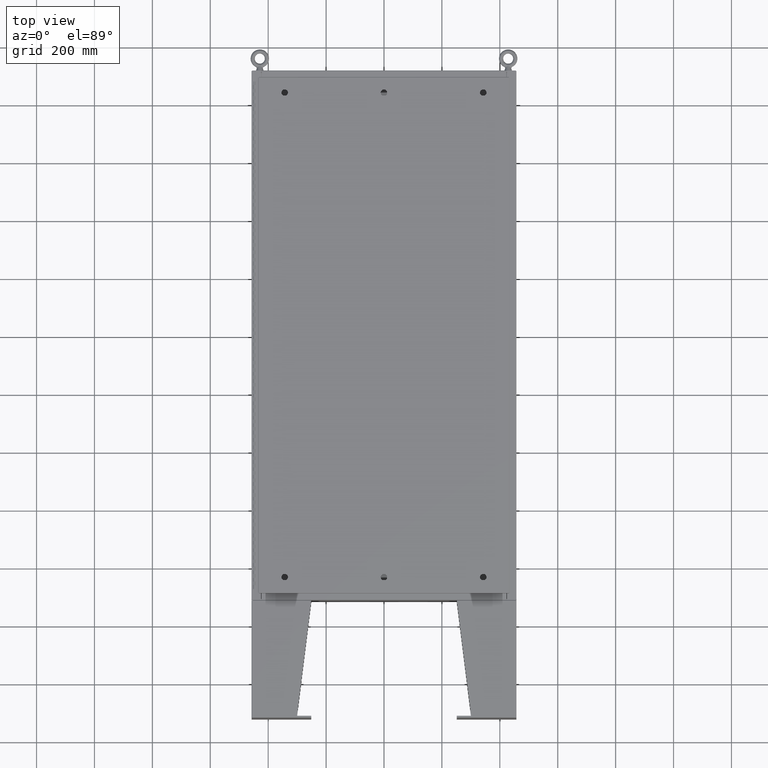
[diagram: clean part render]
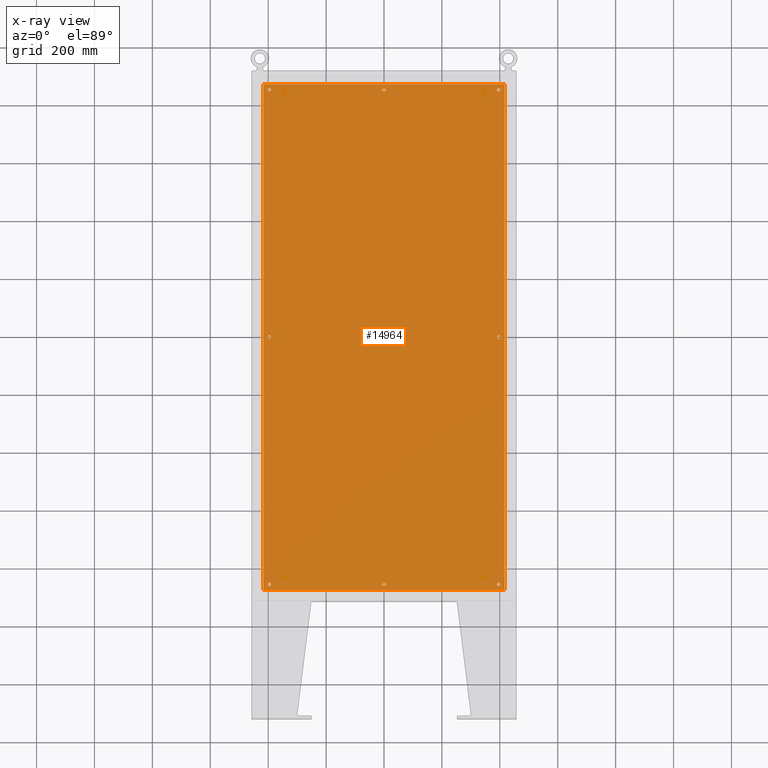
[diagram: x-ray — body ghosted, one internal face saturated and labeled with its STEP entity id]
A machine part, top view, then the same camera in x-ray: the body is ghosted and one INTERNAL B-rep face — a face not visible from any outside direction — is saturated and labeled: STEP entity #14964.
In plain terms, the highlighted planar face has unit normal (0, 0, -1).
Its self-contained STEP definition (entity closure, byte-faithful):
#436 = CIRCLE ( 'NONE', #60839, 0.2500000000000008900 ) ;
#828 = CARTESIAN_POINT ( 'NONE',  ( 15.62500000000000900, -33.62500000000000000, -0.1039999999999999800 ) ) ;
#840 = CARTESIAN_POINT ( 'NONE',  ( 15.37500000000000900, 33.62500000000000000, -0.1039999999999999800 ) ) ;
#859 = ORIENTED_EDGE ( 'NONE', *, *, #42252, .T. ) ;
#1086 = CARTESIAN_POINT ( 'NONE',  ( -15.37500000000000500, -8.298848852119578500E-016, -0.1039999999999999800 ) ) ;
#2755 = VERTEX_POINT ( 'NONE', #70679 ) ;
#2887 = DIRECTION ( 'NONE',  ( -0.0000000000000000000, -0.0000000000000000000, 1.000000000000000000 ) ) ;
#3287 = ORIENTED_EDGE ( 'NONE', *, *, #57635, .F. ) ;
#3484 = EDGE_LOOP ( 'NONE', ( #62811, #40222 ) ) ;
#4362 = DIRECTION ( 'NONE',  ( -0.0000000000000000000, -0.0000000000000000000, 1.000000000000000000 ) ) ;
#5824 = CARTESIAN_POINT ( 'NONE',  ( 16.49999999999999600, 34.38299999999999600, -0.1040000000000009400 ) ) ;
#6119 = VERTEX_POINT ( 'NONE', #40984 ) ;
#6182 = EDGE_CURVE ( 'NONE', #2755, #38094, #36174, .T. ) ;
#6300 = ORIENTED_EDGE ( 'NONE', *, *, #8284, .T. ) ;
#6386 = DIRECTION ( 'NONE',  ( -1.000000000000000000, 0.0000000000000000000, 0.0000000000000000000 ) ) ;
#6483 = FACE_BOUND ( 'NONE', #6679, .T. ) ;
#6590 = EDGE_CURVE ( 'NONE', #22436, #6119, #66834, .T. ) ;
#6679 = EDGE_LOOP ( 'NONE', ( #11524, #35916 ) ) ;
#6924 = CARTESIAN_POINT ( 'NONE',  ( -15.87500000000000700, -33.62500000000000000, -0.1039999999999999800 ) ) ;
#8140 = CARTESIAN_POINT ( 'NONE',  ( 0.0000000000000000000, -33.62500000000000000, -0.1039999999999999800 ) ) ;
#8284 = EDGE_CURVE ( 'NONE', #42154, #24527, #63972, .T. ) ;
#8486 = CARTESIAN_POINT ( 'NONE',  ( -15.62500000000001100, 33.62500000000000000, -0.1039999999999999800 ) ) ;
#8683 = CARTESIAN_POINT ( 'NONE',  ( 0.0000000000000000000, 0.0000000000000000000, -0.1039999999999999800 ) ) ;
#9927 = VERTEX_POINT ( 'NONE', #56062 ) ;
#10317 = DIRECTION ( 'NONE',  ( -0.0000000000000000000, -0.0000000000000000000, 1.000000000000000000 ) ) ;
#10583 = EDGE_LOOP ( 'NONE', ( #66192, #17294 ) ) ;
#10757 = VERTEX_POINT ( 'NONE', #26946 ) ;
#11307 = EDGE_CURVE ( 'NONE', #24527, #42154, #27499, .T. ) ;
#11524 = ORIENTED_EDGE ( 'NONE', *, *, #22285, .T. ) ;
#11844 = AXIS2_PLACEMENT_3D ( 'NONE', #24196, #62332, #29716 ) ;
#12659 = AXIS2_PLACEMENT_3D ( 'NONE', #8683, #41866, #36406 ) ;
#13689 = DIRECTION ( 'NONE',  ( -1.000000000000000000, 0.0000000000000000000, 0.0000000000000000000 ) ) ;
#13736 = EDGE_LOOP ( 'NONE', ( #19243, #47814 ) ) ;
#13830 = DIRECTION ( 'NONE',  ( -0.0000000000000000000, -0.0000000000000000000, 1.000000000000000000 ) ) ;
#14134 = EDGE_LOOP ( 'NONE', ( #27153, #41430, #42616, #3287 ) ) ;
#14382 = DIRECTION ( 'NONE',  ( -1.000000000000000000, 0.0000000000000000000, 0.0000000000000000000 ) ) ;
#14424 = AXIS2_PLACEMENT_3D ( 'NONE', #48854, #13830, #17524 ) ;
#14910 = CARTESIAN_POINT ( 'NONE',  ( -15.62500000000000900, -33.62500000000000000, -0.1039999999999999800 ) ) ;
#14964 = ADVANCED_FACE ( 'NONE', ( #22804, #35599, #6483, #62854, #64576, #21071, #48300, #33929, #19341 ), #63567, .T. ) ;
#16224 = AXIS2_PLACEMENT_3D ( 'NONE', #14910, #59910, #26135 ) ;
#16640 = LINE ( 'NONE', #5824, #43914 ) ;
#17100 = CARTESIAN_POINT ( 'NONE',  ( 15.62500000000000500, 2.997136362123522700E-015, -0.1039999999999999800 ) ) ;
#17205 = DIRECTION ( 'NONE',  ( -1.000000000000000000, 0.0000000000000000000, 0.0000000000000000000 ) ) ;
#17294 = ORIENTED_EDGE ( 'NONE', *, *, #68481, .T. ) ;
#17332 = ORIENTED_EDGE ( 'NONE', *, *, #11307, .T. ) ;
#17524 = DIRECTION ( 'NONE',  ( -1.000000000000000000, 0.0000000000000000000, 0.0000000000000000000 ) ) ;
#17680 = ORIENTED_EDGE ( 'NONE', *, *, #69660, .T. ) ;
#17953 = CIRCLE ( 'NONE', #62887, 0.2499999999999998600 ) ;
#18064 = DIRECTION ( 'NONE',  ( 0.0000000000000000000, 1.000000000000000000, 0.0000000000000000000 ) ) ;
#18602 = VERTEX_POINT ( 'NONE', #24052 ) ;
#19243 = ORIENTED_EDGE ( 'NONE', *, *, #60257, .T. ) ;
#19278 = DIRECTION ( 'NONE',  ( -0.0000000000000000000, -0.0000000000000000000, 1.000000000000000000 ) ) ;
#19341 = FACE_OUTER_BOUND ( 'NONE', #14134, .T. ) ;
#21071 = FACE_BOUND ( 'NONE', #10583, .T. ) ;
#22165 = CARTESIAN_POINT ( 'NONE',  ( -15.62500000000000900, -33.62500000000000000, -0.1039999999999999800 ) ) ;
#22235 = CARTESIAN_POINT ( 'NONE',  ( -0.2499999999999998600, 33.62500000000000000, -0.1039999999999999800 ) ) ;
#22285 = EDGE_CURVE ( 'NONE', #70646, #53462, #68782, .T. ) ;
#22436 = VERTEX_POINT ( 'NONE', #40323 ) ;
#22609 = DIRECTION ( 'NONE',  ( -1.000000000000000000, 0.0000000000000000000, 0.0000000000000000000 ) ) ;
#22804 = FACE_BOUND ( 'NONE', #66093, .T. ) ;
#22868 = EDGE_CURVE ( 'NONE', #41905, #22436, #16640, .T. ) ;
#23808 = CARTESIAN_POINT ( 'NONE',  ( 16.38299999999999600, 34.38300000000000300, -0.1040000000000009100 ) ) ;
#24052 = CARTESIAN_POINT ( 'NONE',  ( 15.87500000000000700, -33.62500000000000000, -0.1039999999999999800 ) ) ;
#24145 = EDGE_LOOP ( 'NONE', ( #859, #61582 ) ) ;
#24196 = CARTESIAN_POINT ( 'NONE',  ( -15.62500000000000500, -8.298848852119578500E-016, -0.1039999999999999800 ) ) ;
#24527 = VERTEX_POINT ( 'NONE', #6924 ) ;
#24595 = DIRECTION ( 'NONE',  ( 0.0000000000000000000, -1.000000000000000000, 0.0000000000000000000 ) ) ;
#26135 = DIRECTION ( 'NONE',  ( -1.000000000000000000, 0.0000000000000000000, 0.0000000000000000000 ) ) ;
#26207 = CARTESIAN_POINT ( 'NONE',  ( 0.2499999999999998600, 33.62500000000000000, -0.1039999999999999800 ) ) ;
#26946 = CARTESIAN_POINT ( 'NONE',  ( -15.87500000000000700, -7.992687152332741600E-016, -0.1039999999999999800 ) ) ;
#27082 = CARTESIAN_POINT ( 'NONE',  ( 0.0000000000000000000, 33.62500000000000000, -0.1039999999999999800 ) ) ;
#27153 = ORIENTED_EDGE ( 'NONE', *, *, #60400, .F. ) ;
#27499 = CIRCLE ( 'NONE', #67299, 0.2499999999999987000 ) ;
#27763 = VERTEX_POINT ( 'NONE', #39054 ) ;
#29139 = DIRECTION ( 'NONE',  ( 1.000000000000000000, -0.0000000000000000000, -0.0000000000000000000 ) ) ;
#29383 = DIRECTION ( 'NONE',  ( -0.0000000000000000000, -0.0000000000000000000, 1.000000000000000000 ) ) ;
#29716 = DIRECTION ( 'NONE',  ( -1.000000000000000000, 0.0000000000000000000, 0.0000000000000000000 ) ) ;
#30029 = EDGE_CURVE ( 'NONE', #49354, #9927, #47210, .T. ) ;
#30883 = CARTESIAN_POINT ( 'NONE',  ( -15.62500000000000500, -8.298848852119578500E-016, -0.1039999999999999800 ) ) ;
#31134 = CIRCLE ( 'NONE', #36311, 0.2500000000000008900 ) ;
#31359 = VERTEX_POINT ( 'NONE', #26207 ) ;
#32343 = AXIS2_PLACEMENT_3D ( 'NONE', #65290, #32663, #70735 ) ;
#32377 = AXIS2_PLACEMENT_3D ( 'NONE', #8140, #46305, #13689 ) ;
#32608 = DIRECTION ( 'NONE',  ( -1.000000000000000000, 0.0000000000000000000, 0.0000000000000000000 ) ) ;
#32663 = DIRECTION ( 'NONE',  ( -0.0000000000000000000, -0.0000000000000000000, 1.000000000000000000 ) ) ;
#33105 = CIRCLE ( 'NONE', #49028, 0.2499999999999987000 ) ;
#33186 = EDGE_CURVE ( 'NONE', #38094, #2755, #50311, .T. ) ;
#33929 = FACE_BOUND ( 'NONE', #3484, .T. ) ;
#34214 = AXIS2_PLACEMENT_3D ( 'NONE', #37167, #4362, #42599 ) ;
#35341 = CIRCLE ( 'NONE', #60954, 0.2499999999999998600 ) ;
#35599 = FACE_BOUND ( 'NONE', #24145, .T. ) ;
#35602 = LINE ( 'NONE', #39799, #50028 ) ;
#35707 = CARTESIAN_POINT ( 'NONE',  ( -0.2500000000000011700, -33.62500000000000000, -0.1039999999999999800 ) ) ;
#35710 = CARTESIAN_POINT ( 'NONE',  ( 15.62500000000000900, 33.62500000000000000, -0.1039999999999999800 ) ) ;
#35916 = ORIENTED_EDGE ( 'NONE', *, *, #57489, .T. ) ;
#36174 = CIRCLE ( 'NONE', #50342, 0.2500000000000008900 ) ;
#36311 = AXIS2_PLACEMENT_3D ( 'NONE', #30883, #49801, #17205 ) ;
#36406 = DIRECTION ( 'NONE',  ( -1.000000000000000000, 0.0000000000000000000, -0.0000000000000000000 ) ) ;
#36693 = CARTESIAN_POINT ( 'NONE',  ( 15.37500000000000900, -33.62500000000000000, -0.1039999999999999800 ) ) ;
#37167 = CARTESIAN_POINT ( 'NONE',  ( -15.62500000000001100, 33.62500000000000000, -0.1039999999999999800 ) ) ;
#37830 = VECTOR ( 'NONE', #24595, 39.37007874015748100 ) ;
#38059 = CARTESIAN_POINT ( 'NONE',  ( 0.2500000000000011700, -33.62500000000000000, -0.1039999999999999800 ) ) ;
#38094 = VERTEX_POINT ( 'NONE', #61214 ) ;
#38779 = LINE ( 'NONE', #45515, #64307 ) ;
#39008 = DIRECTION ( 'NONE',  ( -1.000000000000000000, -0.0000000000000000000, -0.0000000000000000000 ) ) ;
#39054 = CARTESIAN_POINT ( 'NONE',  ( 16.38299999999999600, -34.38300000000000300, -0.1040000000000009100 ) ) ;
#39176 = DIRECTION ( 'NONE',  ( -0.0000000000000000000, -0.0000000000000000000, 1.000000000000000000 ) ) ;
#39632 = VERTEX_POINT ( 'NONE', #36693 ) ;
#39799 = CARTESIAN_POINT ( 'NONE',  ( 16.38299999999999600, -34.38300000000000300, -0.1040000000000009100 ) ) ;
#39894 = AXIS2_PLACEMENT_3D ( 'NONE', #62036, #29383, #67517 ) ;
#40222 = ORIENTED_EDGE ( 'NONE', *, *, #6182, .T. ) ;
#40323 = CARTESIAN_POINT ( 'NONE',  ( -16.38299999999999900, 34.38300000000000300, -0.1040000000000009100 ) ) ;
#40984 = CARTESIAN_POINT ( 'NONE',  ( -16.38299999999999900, -34.38300000000000300, -0.1040000000000009400 ) ) ;
#41182 = DIRECTION ( 'NONE',  ( -1.000000000000000000, 0.0000000000000000000, 0.0000000000000000000 ) ) ;
#41430 = ORIENTED_EDGE ( 'NONE', *, *, #6590, .F. ) ;
#41866 = DIRECTION ( 'NONE',  ( 0.0000000000000000000, 0.0000000000000000000, -1.000000000000000000 ) ) ;
#41905 = VERTEX_POINT ( 'NONE', #23808 ) ;
#42154 = VERTEX_POINT ( 'NONE', #64266 ) ;
#42252 = EDGE_CURVE ( 'NONE', #31359, #61846, #35341, .T. ) ;
#42599 = DIRECTION ( 'NONE',  ( -1.000000000000000000, 0.0000000000000000000, 0.0000000000000000000 ) ) ;
#42616 = ORIENTED_EDGE ( 'NONE', *, *, #22868, .F. ) ;
#43024 = CARTESIAN_POINT ( 'NONE',  ( 15.62500000000000900, -33.62500000000000000, -0.1039999999999999800 ) ) ;
#43062 = EDGE_CURVE ( 'NONE', #18602, #39632, #63675, .T. ) ;
#43116 = AXIS2_PLACEMENT_3D ( 'NONE', #35710, #2887, #41182 ) ;
#43117 = VERTEX_POINT ( 'NONE', #1086 ) ;
#43235 = DIRECTION ( 'NONE',  ( -1.000000000000000000, 0.0000000000000000000, 0.0000000000000000000 ) ) ;
#43914 = VECTOR ( 'NONE', #39008, 39.37007874015748100 ) ;
#44705 = CIRCLE ( 'NONE', #32377, 0.2500000000000011700 ) ;
#45335 = EDGE_CURVE ( 'NONE', #59599, #65285, #44705, .T. ) ;
#45515 = CARTESIAN_POINT ( 'NONE',  ( -16.50000000000000000, -34.38300000000000300, -0.1040000000000009400 ) ) ;
#46305 = DIRECTION ( 'NONE',  ( -0.0000000000000000000, -0.0000000000000000000, 1.000000000000000000 ) ) ;
#46684 = ORIENTED_EDGE ( 'NONE', *, *, #49453, .T. ) ;
#47019 = EDGE_CURVE ( 'NONE', #10757, #43117, #48727, .T. ) ;
#47210 = CIRCLE ( 'NONE', #43116, 0.2499999999999987000 ) ;
#47316 = EDGE_LOOP ( 'NONE', ( #6300, #17332 ) ) ;
#47814 = ORIENTED_EDGE ( 'NONE', *, *, #47019, .T. ) ;
#48300 = FACE_BOUND ( 'NONE', #68568, .T. ) ;
#48466 = DIRECTION ( 'NONE',  ( -1.000000000000000000, 0.0000000000000000000, 0.0000000000000000000 ) ) ;
#48727 = CIRCLE ( 'NONE', #11844, 0.2500000000000008900 ) ;
#48854 = CARTESIAN_POINT ( 'NONE',  ( 15.62500000000000500, 2.997136362123522700E-015, -0.1039999999999999800 ) ) ;
#49028 = AXIS2_PLACEMENT_3D ( 'NONE', #43024, #10317, #48466 ) ;
#49354 = VERTEX_POINT ( 'NONE', #840 ) ;
#49453 = EDGE_CURVE ( 'NONE', #65285, #59599, #51799, .T. ) ;
#49505 = AXIS2_PLACEMENT_3D ( 'NONE', #828, #39176, #6386 ) ;
#49673 = ORIENTED_EDGE ( 'NONE', *, *, #30029, .T. ) ;
#49801 = DIRECTION ( 'NONE',  ( -0.0000000000000000000, -0.0000000000000000000, 1.000000000000000000 ) ) ;
#50028 = VECTOR ( 'NONE', #18064, 39.37007874015748100 ) ;
#50311 = CIRCLE ( 'NONE', #34214, 0.2500000000000008900 ) ;
#50342 = AXIS2_PLACEMENT_3D ( 'NONE', #8486, #63209, #43235 ) ;
#50987 = CARTESIAN_POINT ( 'NONE',  ( 15.87500000000000700, 2.997136362123522700E-015, -0.1039999999999999800 ) ) ;
#51799 = CIRCLE ( 'NONE', #39894, 0.2500000000000011700 ) ;
#51892 = CARTESIAN_POINT ( 'NONE',  ( 0.0000000000000000000, 33.62500000000000000, -0.1039999999999999800 ) ) ;
#53462 = VERTEX_POINT ( 'NONE', #64939 ) ;
#55182 = DIRECTION ( 'NONE',  ( -0.0000000000000000000, -0.0000000000000000000, 1.000000000000000000 ) ) ;
#55800 = DIRECTION ( 'NONE',  ( -0.0000000000000000000, -0.0000000000000000000, 1.000000000000000000 ) ) ;
#56062 = CARTESIAN_POINT ( 'NONE',  ( 15.87500000000000700, 33.62500000000000000, -0.1039999999999999800 ) ) ;
#57366 = DIRECTION ( 'NONE',  ( -1.000000000000000000, 0.0000000000000000000, 0.0000000000000000000 ) ) ;
#57489 = EDGE_CURVE ( 'NONE', #53462, #70646, #436, .T. ) ;
#57635 = EDGE_CURVE ( 'NONE', #27763, #41905, #35602, .T. ) ;
#59599 = VERTEX_POINT ( 'NONE', #35707 ) ;
#59910 = DIRECTION ( 'NONE',  ( -0.0000000000000000000, -0.0000000000000000000, 1.000000000000000000 ) ) ;
#60257 = EDGE_CURVE ( 'NONE', #43117, #10757, #31134, .T. ) ;
#60400 = EDGE_CURVE ( 'NONE', #6119, #27763, #38779, .T. ) ;
#60839 = AXIS2_PLACEMENT_3D ( 'NONE', #17100, #55182, #22609 ) ;
#60954 = AXIS2_PLACEMENT_3D ( 'NONE', #27082, #65232, #32608 ) ;
#61214 = CARTESIAN_POINT ( 'NONE',  ( -15.37500000000000900, 33.62500000000000000, -0.1039999999999999800 ) ) ;
#61582 = ORIENTED_EDGE ( 'NONE', *, *, #69449, .T. ) ;
#61846 = VERTEX_POINT ( 'NONE', #22235 ) ;
#62036 = CARTESIAN_POINT ( 'NONE',  ( 0.0000000000000000000, -33.62500000000000000, -0.1039999999999999800 ) ) ;
#62271 = CIRCLE ( 'NONE', #32343, 0.2499999999999987000 ) ;
#62332 = DIRECTION ( 'NONE',  ( -0.0000000000000000000, -0.0000000000000000000, 1.000000000000000000 ) ) ;
#62811 = ORIENTED_EDGE ( 'NONE', *, *, #33186, .T. ) ;
#62854 = FACE_BOUND ( 'NONE', #13736, .T. ) ;
#62887 = AXIS2_PLACEMENT_3D ( 'NONE', #51892, #19278, #57366 ) ;
#63209 = DIRECTION ( 'NONE',  ( -0.0000000000000000000, -0.0000000000000000000, 1.000000000000000000 ) ) ;
#63567 = PLANE ( 'NONE',  #12659 ) ;
#63675 = CIRCLE ( 'NONE', #49505, 0.2499999999999987000 ) ;
#63972 = CIRCLE ( 'NONE', #16224, 0.2499999999999987000 ) ;
#64266 = CARTESIAN_POINT ( 'NONE',  ( -15.37500000000000900, -33.62500000000000000, -0.1039999999999999800 ) ) ;
#64307 = VECTOR ( 'NONE', #29139, 39.37007874015748100 ) ;
#64576 = FACE_BOUND ( 'NONE', #47316, .T. ) ;
#64734 = ORIENTED_EDGE ( 'NONE', *, *, #45335, .T. ) ;
#64939 = CARTESIAN_POINT ( 'NONE',  ( 15.37500000000000500, 3.027752532102206500E-015, -0.1039999999999999800 ) ) ;
#65232 = DIRECTION ( 'NONE',  ( -0.0000000000000000000, -0.0000000000000000000, 1.000000000000000000 ) ) ;
#65285 = VERTEX_POINT ( 'NONE', #38059 ) ;
#65290 = CARTESIAN_POINT ( 'NONE',  ( 15.62500000000000900, 33.62500000000000000, -0.1039999999999999800 ) ) ;
#66093 = EDGE_LOOP ( 'NONE', ( #46684, #64734 ) ) ;
#66192 = ORIENTED_EDGE ( 'NONE', *, *, #43062, .T. ) ;
#66834 = LINE ( 'NONE', #67564, #37830 ) ;
#67299 = AXIS2_PLACEMENT_3D ( 'NONE', #22165, #55800, #14382 ) ;
#67517 = DIRECTION ( 'NONE',  ( -1.000000000000000000, 0.0000000000000000000, 0.0000000000000000000 ) ) ;
#67564 = CARTESIAN_POINT ( 'NONE',  ( -16.38299999999999900, 34.38300000000000300, -0.1040000000000009100 ) ) ;
#68481 = EDGE_CURVE ( 'NONE', #39632, #18602, #33105, .T. ) ;
#68568 = EDGE_LOOP ( 'NONE', ( #17680, #49673 ) ) ;
#68782 = CIRCLE ( 'NONE', #14424, 0.2500000000000008900 ) ;
#69449 = EDGE_CURVE ( 'NONE', #61846, #31359, #17953, .T. ) ;
#69660 = EDGE_CURVE ( 'NONE', #9927, #49354, #62271, .T. ) ;
#70646 = VERTEX_POINT ( 'NONE', #50987 ) ;
#70679 = CARTESIAN_POINT ( 'NONE',  ( -15.87500000000001100, 33.62500000000000000, -0.1039999999999999800 ) ) ;
#70735 = DIRECTION ( 'NONE',  ( -1.000000000000000000, 0.0000000000000000000, 0.0000000000000000000 ) ) ;